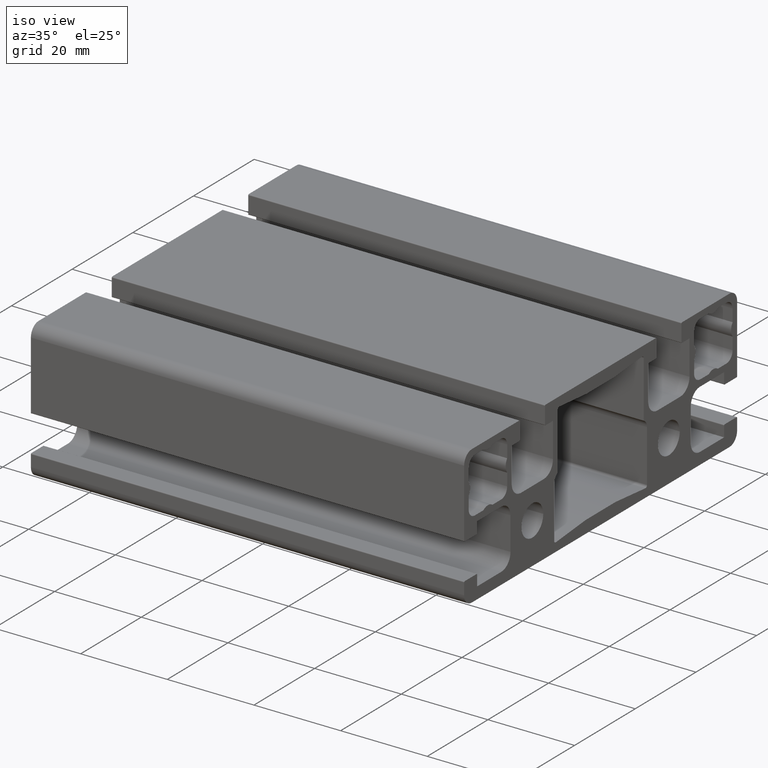
[diagram: clean part render]
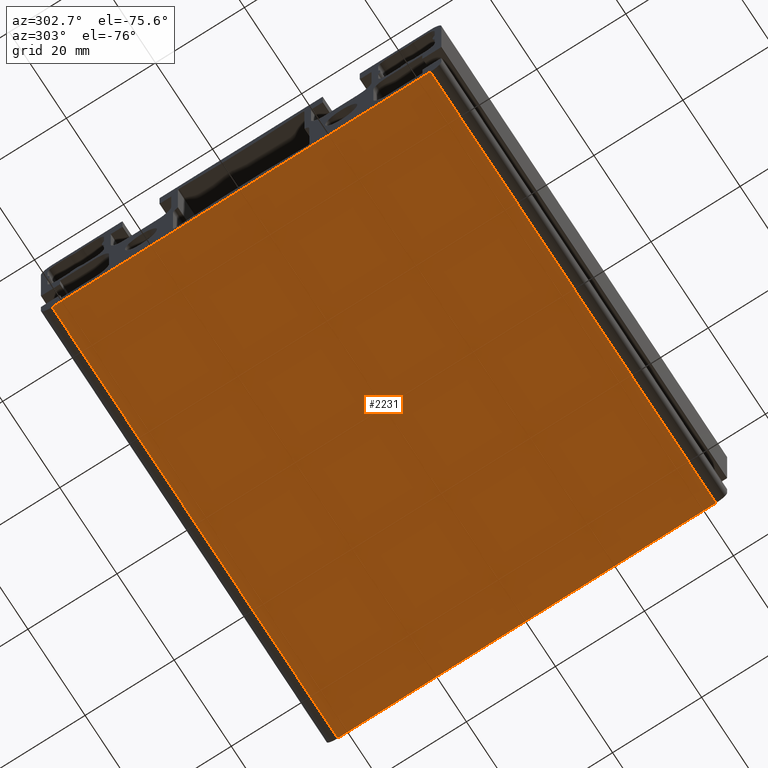
[diagram: tour spotlight — one face highlighted and labeled with its STEP entity id]
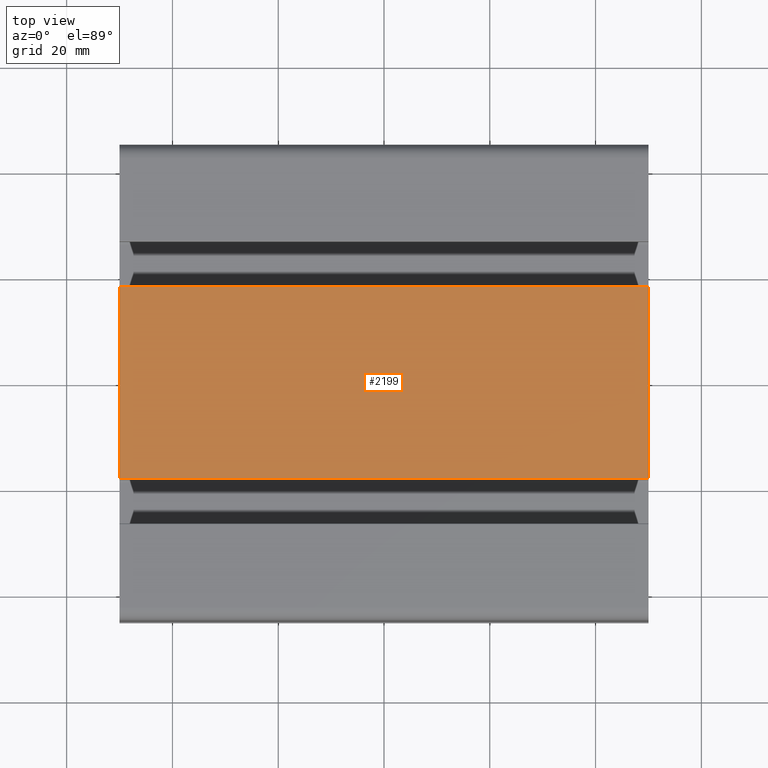
[diagram: tour spotlight — one face highlighted and labeled with its STEP entity id]
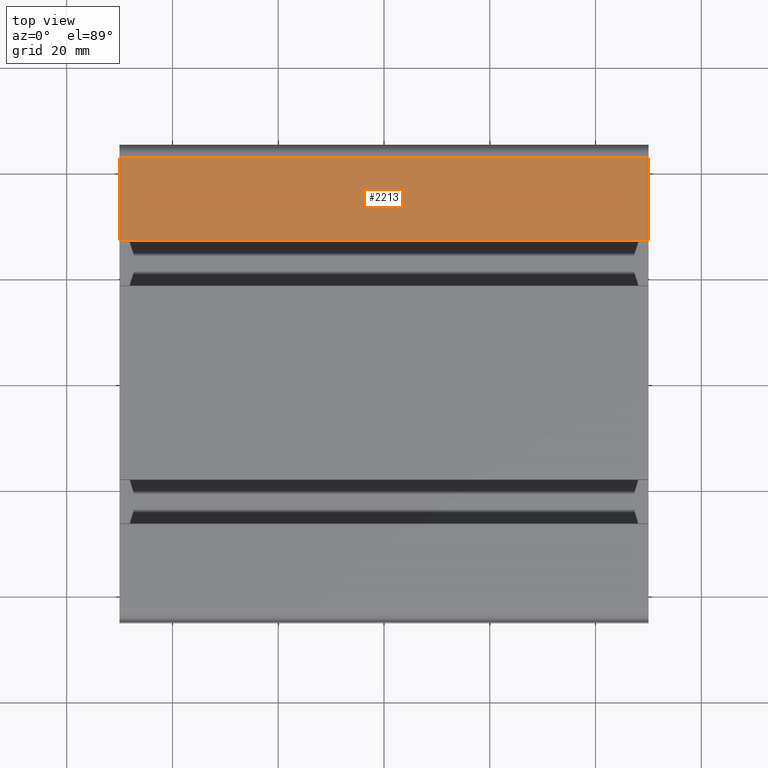
[diagram: tour spotlight — one face highlighted and labeled with its STEP entity id]
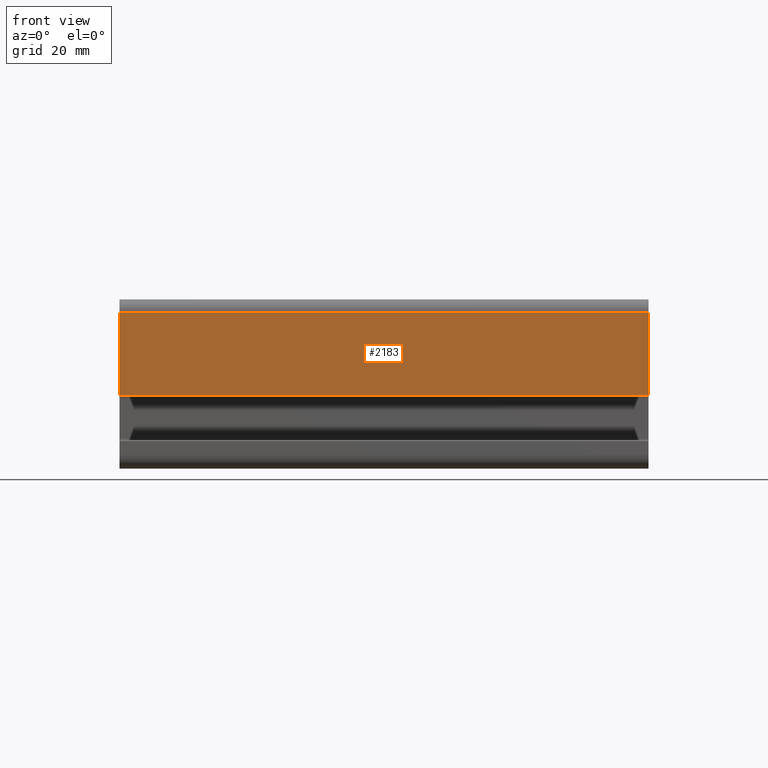
[diagram: tour spotlight — one face highlighted and labeled with its STEP entity id]
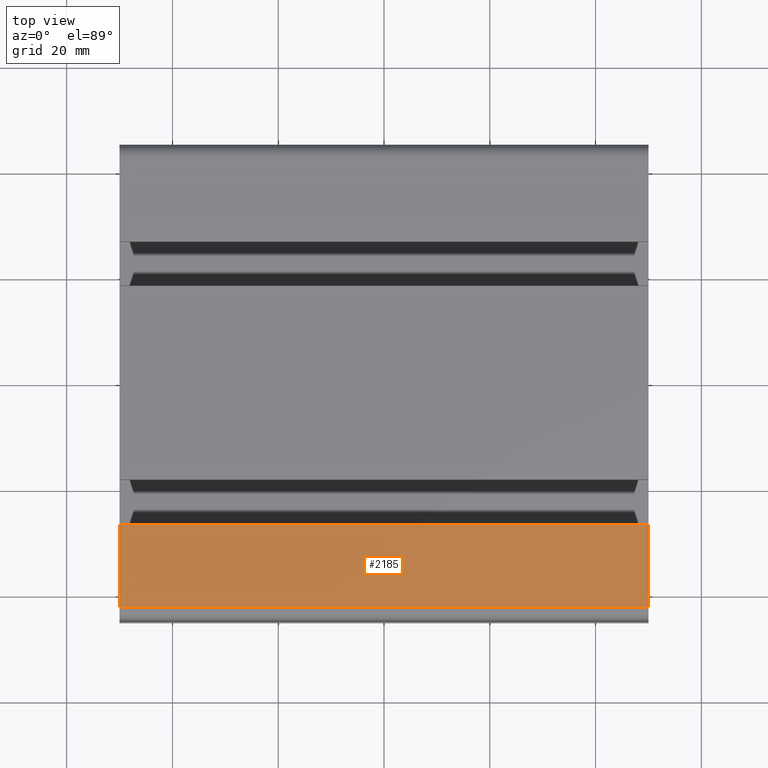
[diagram: tour spotlight — one face highlighted and labeled with its STEP entity id]
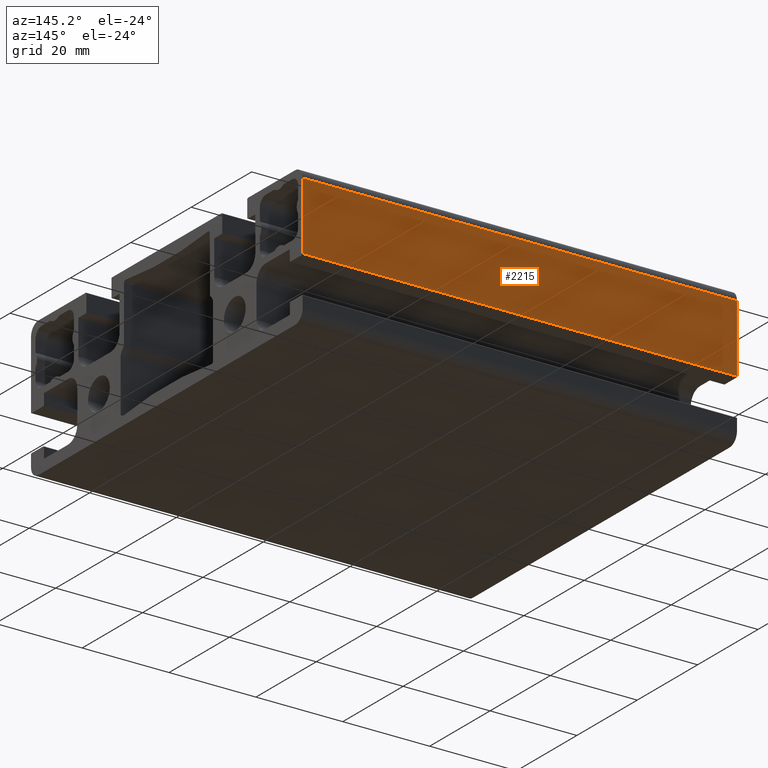
[diagram: tour spotlight — one face highlighted and labeled with its STEP entity id]
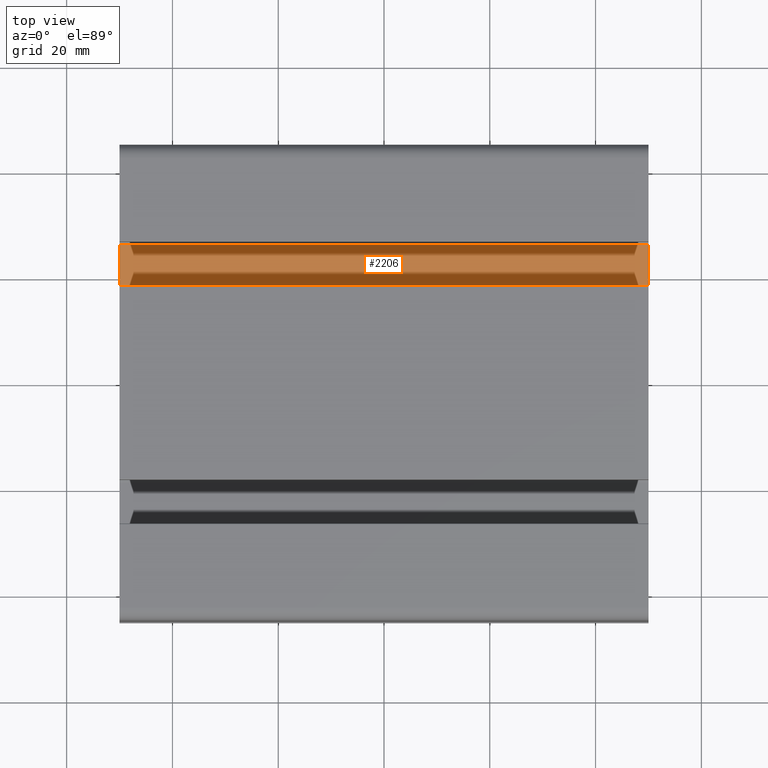
[diagram: tour spotlight — one face highlighted and labeled with its STEP entity id]
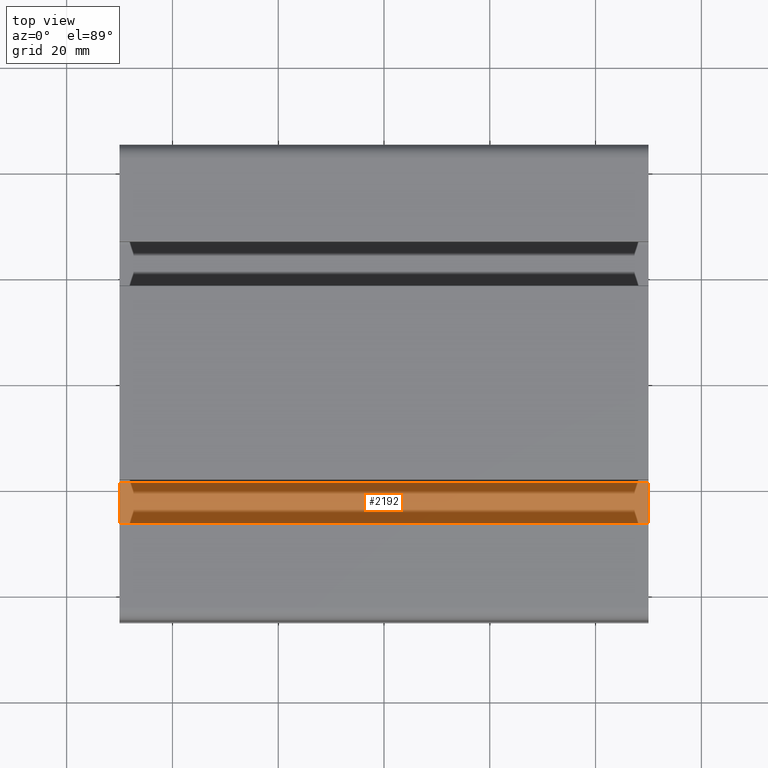
[diagram: tour spotlight — one face highlighted and labeled with its STEP entity id]
A machine part: a face-by-face anatomy tour. The part has 112 B-rep faces; the first image is the clean iso view, then the 8 largest visible faces are spotlighted one at a time (largest first), each with its STEP entity span.

Face 1 — auxiliary view, entity #2231. In plain terms, the highlighted planar face has unit normal (0, 0, -1).
Definition (entity closure, byte-faithful):
#74=PLANE('',#2466);
#181=FACE_OUTER_BOUND('',#298,.T.);
#298=EDGE_LOOP('',(#1917,#1918,#1919,#1920));
#540=LINE('',#3533,#762);
#626=LINE('',#3760,#848);
#627=LINE('',#3763,#849);
#628=LINE('',#3764,#850);
#762=VECTOR('',#2846,10.);
#848=VECTOR('',#3090,10.);
#849=VECTOR('',#3093,10.);
#850=VECTOR('',#3094,10.);
#1013=VERTEX_POINT('',#3530);
#1014=VERTEX_POINT('',#3532);
#1076=VERTEX_POINT('',#3758);
#1077=VERTEX_POINT('',#3762);
#1279=EDGE_CURVE('',#1013,#1014,#540,.T.);
#1393=EDGE_CURVE('',#1076,#1013,#626,.T.);
#1394=EDGE_CURVE('',#1077,#1076,#627,.T.);
#1395=EDGE_CURVE('',#1077,#1014,#628,.T.);
#1917=ORIENTED_EDGE('',*,*,#1393,.F.);
#1918=ORIENTED_EDGE('',*,*,#1394,.F.);
#1919=ORIENTED_EDGE('',*,*,#1395,.T.);
#1920=ORIENTED_EDGE('',*,*,#1279,.F.);
#2231=ADVANCED_FACE('',(#181),#74,.T.);
#2466=AXIS2_PLACEMENT_3D('',#3761,#3091,#3092);
#2846=DIRECTION('',(0.,-1.,0.));
#3090=DIRECTION('',(-1.,0.,0.));
#3091=DIRECTION('center_axis',(0.,0.,-1.));
#3092=DIRECTION('ref_axis',(0.,1.,0.));
#3093=DIRECTION('',(0.,1.,0.));
#3094=DIRECTION('',(-1.,0.,0.));
#3530=CARTESIAN_POINT('',(-50.,42.5,-16.));
#3532=CARTESIAN_POINT('',(-50.,-42.5,-16.));
#3533=CARTESIAN_POINT('',(-50.,42.5,-16.));
#3758=CARTESIAN_POINT('',(50.,42.5,-16.));
#3760=CARTESIAN_POINT('',(0.,42.5,-16.));
#3761=CARTESIAN_POINT('Origin',(0.,-42.5,-16.));
#3762=CARTESIAN_POINT('',(50.,-42.5,-16.));
#3763=CARTESIAN_POINT('',(50.,42.5,-16.));
#3764=CARTESIAN_POINT('',(0.,-42.5,-16.));

Face 2 — top view, entity #2199. In plain terms, the highlighted planar face has unit normal (0, 0, 1).
Definition (entity closure, byte-faithful):
#56=PLANE('',#2420);
#149=FACE_OUTER_BOUND('',#266,.T.);
#266=EDGE_LOOP('',(#1789,#1790,#1791,#1792));
#522=LINE('',#3469,#744);
#576=LINE('',#3632,#798);
#577=LINE('',#3635,#799);
#578=LINE('',#3636,#800);
#744=VECTOR('',#2800,10.);
#798=VECTOR('',#2948,10.);
#799=VECTOR('',#2951,10.);
#800=VECTOR('',#2952,10.);
#981=VERTEX_POINT('',#3466);
#982=VERTEX_POINT('',#3468);
#1044=VERTEX_POINT('',#3630);
#1045=VERTEX_POINT('',#3634);
#1247=EDGE_CURVE('',#981,#982,#522,.T.);
#1329=EDGE_CURVE('',#1044,#981,#576,.T.);
#1330=EDGE_CURVE('',#1045,#1044,#577,.T.);
#1331=EDGE_CURVE('',#1045,#982,#578,.T.);
#1789=ORIENTED_EDGE('',*,*,#1329,.F.);
#1790=ORIENTED_EDGE('',*,*,#1330,.F.);
#1791=ORIENTED_EDGE('',*,*,#1331,.T.);
#1792=ORIENTED_EDGE('',*,*,#1247,.F.);
#2199=ADVANCED_FACE('',(#149),#56,.T.);
#2420=AXIS2_PLACEMENT_3D('',#3633,#2949,#2950);
#2800=DIRECTION('',(0.,1.,-6.11693126515238E-17));
#2948=DIRECTION('',(-1.,0.,0.));
#2949=DIRECTION('center_axis',(0.,6.11693126515238E-17,1.));
#2950=DIRECTION('ref_axis',(0.,-1.,6.11693126515238E-17));
#2951=DIRECTION('',(0.,-1.,6.11693126515238E-17));
#2952=DIRECTION('',(-1.,0.,0.));
#3466=CARTESIAN_POINT('',(-50.,-18.15,16.));
#3468=CARTESIAN_POINT('',(-50.,18.15,16.));
#3469=CARTESIAN_POINT('',(-50.,-18.15,16.));
#3630=CARTESIAN_POINT('',(50.,-18.15,16.));
#3632=CARTESIAN_POINT('',(0.,-18.15,16.));
#3633=CARTESIAN_POINT('Origin',(0.,18.15,16.));
#3634=CARTESIAN_POINT('',(50.,18.15,16.));
#3635=CARTESIAN_POINT('',(50.,-18.15,16.));
#3636=CARTESIAN_POINT('',(0.,18.15,16.));

Face 3 — top view, entity #2213. In plain terms, the highlighted planar face has unit normal (0, -0, 1).
Definition (entity closure, byte-faithful):
#64=PLANE('',#2440);
#163=FACE_OUTER_BOUND('',#280,.T.);
#280=EDGE_LOOP('',(#1845,#1846,#1847,#1848));
#530=LINE('',#3497,#752);
#598=LINE('',#3688,#820);
#599=LINE('',#3691,#821);
#600=LINE('',#3692,#822);
#752=VECTOR('',#2820,10.);
#820=VECTOR('',#3010,10.);
#821=VECTOR('',#3013,10.);
#822=VECTOR('',#3014,10.);
#995=VERTEX_POINT('',#3494);
#996=VERTEX_POINT('',#3496);
#1058=VERTEX_POINT('',#3686);
#1059=VERTEX_POINT('',#3690);
#1261=EDGE_CURVE('',#995,#996,#530,.T.);
#1357=EDGE_CURVE('',#1058,#995,#598,.T.);
#1358=EDGE_CURVE('',#1059,#1058,#599,.T.);
#1359=EDGE_CURVE('',#1059,#996,#600,.T.);
#1845=ORIENTED_EDGE('',*,*,#1357,.F.);
#1846=ORIENTED_EDGE('',*,*,#1358,.F.);
#1847=ORIENTED_EDGE('',*,*,#1359,.T.);
#1848=ORIENTED_EDGE('',*,*,#1261,.F.);
#2213=ADVANCED_FACE('',(#163),#64,.T.);
#2440=AXIS2_PLACEMENT_3D('',#3689,#3011,#3012);
#2820=DIRECTION('',(0.,1.,1.41881536693311E-16));
#3010=DIRECTION('',(-1.,0.,0.));
#3011=DIRECTION('center_axis',(0.,-1.41881536693311E-16,1.));
#3012=DIRECTION('ref_axis',(0.,-1.,-1.41881536693311E-16));
#3013=DIRECTION('',(0.,-1.,-1.41881536693311E-16));
#3014=DIRECTION('',(-1.,0.,0.));
#3494=CARTESIAN_POINT('',(-50.,26.85,16.));
#3496=CARTESIAN_POINT('',(-50.,42.5,16.));
#3497=CARTESIAN_POINT('',(-50.,26.85,16.));
#3686=CARTESIAN_POINT('',(50.,26.85,16.));
#3688=CARTESIAN_POINT('',(0.,26.85,16.));
#3689=CARTESIAN_POINT('Origin',(0.,42.5,16.));
#3690=CARTESIAN_POINT('',(50.,42.5,16.));
#3691=CARTESIAN_POINT('',(50.,26.85,16.));
#3692=CARTESIAN_POINT('',(0.,42.5,16.));

Face 4 — front view, entity #2183. In plain terms, the highlighted planar face has unit normal (0, -1, 0).
Definition (entity closure, byte-faithful):
#47=PLANE('',#2397);
#133=FACE_OUTER_BOUND('',#250,.T.);
#250=EDGE_LOOP('',(#1725,#1726,#1727,#1728));
#513=LINE('',#3437,#735);
#551=LINE('',#3568,#773);
#552=LINE('',#3571,#774);
#553=LINE('',#3572,#775);
#735=VECTOR('',#2777,10.);
#773=VECTOR('',#2877,10.);
#774=VECTOR('',#2880,10.);
#775=VECTOR('',#2881,10.);
#965=VERTEX_POINT('',#3434);
#966=VERTEX_POINT('',#3436);
#1028=VERTEX_POINT('',#3566);
#1029=VERTEX_POINT('',#3570);
#1231=EDGE_CURVE('',#965,#966,#513,.T.);
#1297=EDGE_CURVE('',#1028,#965,#551,.T.);
#1298=EDGE_CURVE('',#1029,#1028,#552,.T.);
#1299=EDGE_CURVE('',#1029,#966,#553,.T.);
#1725=ORIENTED_EDGE('',*,*,#1297,.F.);
#1726=ORIENTED_EDGE('',*,*,#1298,.F.);
#1727=ORIENTED_EDGE('',*,*,#1299,.T.);
#1728=ORIENTED_EDGE('',*,*,#1231,.F.);
#2183=ADVANCED_FACE('',(#133),#47,.T.);
#2397=AXIS2_PLACEMENT_3D('',#3569,#2878,#2879);
#2777=DIRECTION('',(0.,0.,1.));
#2877=DIRECTION('',(-1.,0.,0.));
#2878=DIRECTION('center_axis',(0.,-1.,0.));
#2879=DIRECTION('ref_axis',(0.,0.,-1.));
#2880=DIRECTION('',(0.,0.,-1.));
#2881=DIRECTION('',(-1.,0.,0.));
#3434=CARTESIAN_POINT('',(-50.,-45.,-2.15));
#3436=CARTESIAN_POINT('',(-50.,-45.,13.5));
#3437=CARTESIAN_POINT('',(-50.,-45.,-2.15));
#3566=CARTESIAN_POINT('',(50.,-45.,-2.15));
#3568=CARTESIAN_POINT('',(0.,-45.,-2.15));
#3569=CARTESIAN_POINT('Origin',(0.,-45.,13.5));
#3570=CARTESIAN_POINT('',(50.,-45.,13.5));
#3571=CARTESIAN_POINT('',(50.,-45.,-2.15));
#3572=CARTESIAN_POINT('',(0.,-45.,13.5));

Face 5 — top view, entity #2185. In plain terms, the highlighted planar face has unit normal (0, 0, 1).
Definition (entity closure, byte-faithful):
#48=PLANE('',#2400);
#135=FACE_OUTER_BOUND('',#252,.T.);
#252=EDGE_LOOP('',(#1733,#1734,#1735,#1736));
#514=LINE('',#3441,#736);
#554=LINE('',#3576,#776);
#555=LINE('',#3579,#777);
#556=LINE('',#3580,#778);
#736=VECTOR('',#2780,10.);
#776=VECTOR('',#2886,10.);
#777=VECTOR('',#2889,10.);
#778=VECTOR('',#2890,10.);
#967=VERTEX_POINT('',#3438);
#968=VERTEX_POINT('',#3440);
#1030=VERTEX_POINT('',#3574);
#1031=VERTEX_POINT('',#3578);
#1233=EDGE_CURVE('',#967,#968,#514,.T.);
#1301=EDGE_CURVE('',#1030,#967,#554,.T.);
#1302=EDGE_CURVE('',#1031,#1030,#555,.T.);
#1303=EDGE_CURVE('',#1031,#968,#556,.T.);
#1733=ORIENTED_EDGE('',*,*,#1301,.F.);
#1734=ORIENTED_EDGE('',*,*,#1302,.F.);
#1735=ORIENTED_EDGE('',*,*,#1303,.T.);
#1736=ORIENTED_EDGE('',*,*,#1233,.F.);
#2185=ADVANCED_FACE('',(#135),#48,.T.);
#2400=AXIS2_PLACEMENT_3D('',#3577,#2887,#2888);
#2780=DIRECTION('',(0.,1.,-1.41881536693311E-16));
#2886=DIRECTION('',(-1.,0.,0.));
#2887=DIRECTION('center_axis',(0.,1.41881536693311E-16,1.));
#2888=DIRECTION('ref_axis',(0.,-1.,1.41881536693311E-16));
#2889=DIRECTION('',(0.,-1.,1.41881536693311E-16));
#2890=DIRECTION('',(-1.,0.,0.));
#3438=CARTESIAN_POINT('',(-50.,-42.5,16.));
#3440=CARTESIAN_POINT('',(-50.,-26.85,16.));
#3441=CARTESIAN_POINT('',(-50.,-42.5,16.));
#3574=CARTESIAN_POINT('',(50.,-42.5,16.));
#3576=CARTESIAN_POINT('',(0.,-42.5,16.));
#3577=CARTESIAN_POINT('Origin',(0.,-26.85,16.));
#3578=CARTESIAN_POINT('',(50.,-26.85,16.));
#3579=CARTESIAN_POINT('',(50.,-42.5,16.));
#3580=CARTESIAN_POINT('',(0.,-26.85,16.));

Face 6 — auxiliary view, entity #2215. In plain terms, the highlighted planar face has unit normal (0, 1, 0).
Definition (entity closure, byte-faithful):
#65=PLANE('',#2443);
#165=FACE_OUTER_BOUND('',#282,.T.);
#282=EDGE_LOOP('',(#1853,#1854,#1855,#1856));
#531=LINE('',#3501,#753);
#601=LINE('',#3696,#823);
#602=LINE('',#3699,#824);
#603=LINE('',#3700,#825);
#753=VECTOR('',#2823,10.);
#823=VECTOR('',#3019,10.);
#824=VECTOR('',#3022,10.);
#825=VECTOR('',#3023,10.);
#997=VERTEX_POINT('',#3498);
#998=VERTEX_POINT('',#3500);
#1060=VERTEX_POINT('',#3694);
#1061=VERTEX_POINT('',#3698);
#1263=EDGE_CURVE('',#997,#998,#531,.T.);
#1361=EDGE_CURVE('',#1060,#997,#601,.T.);
#1362=EDGE_CURVE('',#1061,#1060,#602,.T.);
#1363=EDGE_CURVE('',#1061,#998,#603,.T.);
#1853=ORIENTED_EDGE('',*,*,#1361,.F.);
#1854=ORIENTED_EDGE('',*,*,#1362,.F.);
#1855=ORIENTED_EDGE('',*,*,#1363,.T.);
#1856=ORIENTED_EDGE('',*,*,#1263,.F.);
#2215=ADVANCED_FACE('',(#165),#65,.T.);
#2443=AXIS2_PLACEMENT_3D('',#3697,#3020,#3021);
#2823=DIRECTION('',(0.,5.67526146773243E-16,-1.));
#3019=DIRECTION('',(-1.,0.,0.));
#3020=DIRECTION('center_axis',(0.,1.,5.67526146773243E-16));
#3021=DIRECTION('ref_axis',(0.,-5.67526146773243E-16,1.));
#3022=DIRECTION('',(0.,-5.67526146773243E-16,1.));
#3023=DIRECTION('',(-1.,0.,0.));
#3498=CARTESIAN_POINT('',(-50.,45.,13.5));
#3500=CARTESIAN_POINT('',(-50.,45.,-2.15));
#3501=CARTESIAN_POINT('',(-50.,45.,13.5));
#3694=CARTESIAN_POINT('',(50.,45.,13.5));
#3696=CARTESIAN_POINT('',(0.,45.,13.5));
#3697=CARTESIAN_POINT('Origin',(0.,45.,-2.15));
#3698=CARTESIAN_POINT('',(50.,45.,-2.15));
#3699=CARTESIAN_POINT('',(50.,45.,13.5));
#3700=CARTESIAN_POINT('',(0.,45.,-2.15));

Face 7 — top view, entity #2206. In plain terms, the highlighted planar face has unit normal (0, 0, 1).
Definition (entity closure, byte-faithful):
#60=PLANE('',#2430);
#156=FACE_OUTER_BOUND('',#273,.T.);
#273=EDGE_LOOP('',(#1817,#1818,#1819,#1820));
#526=LINE('',#3483,#748);
#587=LINE('',#3660,#809);
#588=LINE('',#3663,#810);
#589=LINE('',#3664,#811);
#748=VECTOR('',#2810,10.);
#809=VECTOR('',#2979,10.);
#810=VECTOR('',#2982,10.);
#811=VECTOR('',#2983,10.);
#988=VERTEX_POINT('',#3480);
#989=VERTEX_POINT('',#3482);
#1051=VERTEX_POINT('',#3658);
#1052=VERTEX_POINT('',#3662);
#1254=EDGE_CURVE('',#988,#989,#526,.T.);
#1343=EDGE_CURVE('',#1051,#988,#587,.T.);
#1344=EDGE_CURVE('',#1052,#1051,#588,.T.);
#1345=EDGE_CURVE('',#1052,#989,#589,.T.);
#1817=ORIENTED_EDGE('',*,*,#1343,.F.);
#1818=ORIENTED_EDGE('',*,*,#1344,.F.);
#1819=ORIENTED_EDGE('',*,*,#1345,.T.);
#1820=ORIENTED_EDGE('',*,*,#1254,.F.);
#2206=ADVANCED_FACE('',(#156),#60,.T.);
#2430=AXIS2_PLACEMENT_3D('',#3661,#2980,#2981);
#2810=DIRECTION('',(0.,1.,0.));
#2979=DIRECTION('',(-1.,0.,0.));
#2980=DIRECTION('center_axis',(0.,0.,1.));
#2981=DIRECTION('ref_axis',(0.,-1.,0.));
#2982=DIRECTION('',(0.,-1.,0.));
#2983=DIRECTION('',(-1.,0.,0.));
#3480=CARTESIAN_POINT('',(-50.,18.7,0.699999999999998));
#3482=CARTESIAN_POINT('',(-50.,26.3,0.699999999999998));
#3483=CARTESIAN_POINT('',(-50.,18.7,0.699999999999998));
#3658=CARTESIAN_POINT('',(50.,18.7,0.699999999999998));
#3660=CARTESIAN_POINT('',(0.,18.7,0.699999999999998));
#3661=CARTESIAN_POINT('Origin',(0.,26.3,0.699999999999998));
#3662=CARTESIAN_POINT('',(50.,26.3,0.699999999999998));
#3663=CARTESIAN_POINT('',(50.,18.7,0.699999999999998));
#3664=CARTESIAN_POINT('',(0.,26.3,0.699999999999998));

Face 8 — top view, entity #2192. In plain terms, the highlighted planar face has unit normal (0, 0, 1).
Definition (entity closure, byte-faithful):
#52=PLANE('',#2410);
#142=FACE_OUTER_BOUND('',#259,.T.);
#259=EDGE_LOOP('',(#1761,#1762,#1763,#1764));
#518=LINE('',#3455,#740);
#565=LINE('',#3604,#787);
#566=LINE('',#3607,#788);
#567=LINE('',#3608,#789);
#740=VECTOR('',#2790,10.);
#787=VECTOR('',#2917,10.);
#788=VECTOR('',#2920,10.);
#789=VECTOR('',#2921,10.);
#974=VERTEX_POINT('',#3452);
#975=VERTEX_POINT('',#3454);
#1037=VERTEX_POINT('',#3602);
#1038=VERTEX_POINT('',#3606);
#1240=EDGE_CURVE('',#974,#975,#518,.T.);
#1315=EDGE_CURVE('',#1037,#974,#565,.T.);
#1316=EDGE_CURVE('',#1038,#1037,#566,.T.);
#1317=EDGE_CURVE('',#1038,#975,#567,.T.);
#1761=ORIENTED_EDGE('',*,*,#1315,.F.);
#1762=ORIENTED_EDGE('',*,*,#1316,.F.);
#1763=ORIENTED_EDGE('',*,*,#1317,.T.);
#1764=ORIENTED_EDGE('',*,*,#1240,.F.);
#2192=ADVANCED_FACE('',(#142),#52,.T.);
#2410=AXIS2_PLACEMENT_3D('',#3605,#2918,#2919);
#2790=DIRECTION('',(0.,1.,0.));
#2917=DIRECTION('',(-1.,0.,0.));
#2918=DIRECTION('center_axis',(0.,0.,1.));
#2919=DIRECTION('ref_axis',(0.,-1.,0.));
#2920=DIRECTION('',(0.,-1.,0.));
#2921=DIRECTION('',(-1.,0.,0.));
#3452=CARTESIAN_POINT('',(-50.,-26.3,0.7));
#3454=CARTESIAN_POINT('',(-50.,-18.7,0.7));
#3455=CARTESIAN_POINT('',(-50.,-26.3,0.7));
#3602=CARTESIAN_POINT('',(50.,-26.3,0.7));
#3604=CARTESIAN_POINT('',(0.,-26.3,0.7));
#3605=CARTESIAN_POINT('Origin',(0.,-18.7,0.7));
#3606=CARTESIAN_POINT('',(50.,-18.7,0.7));
#3607=CARTESIAN_POINT('',(50.,-26.3,0.7));
#3608=CARTESIAN_POINT('',(0.,-18.7,0.7));